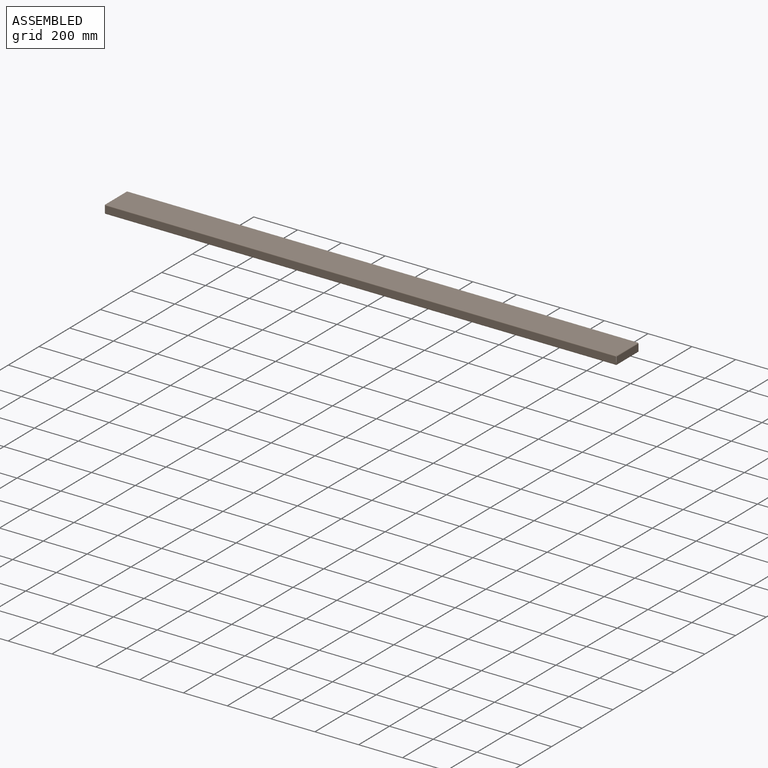
[diagram: assembled view]
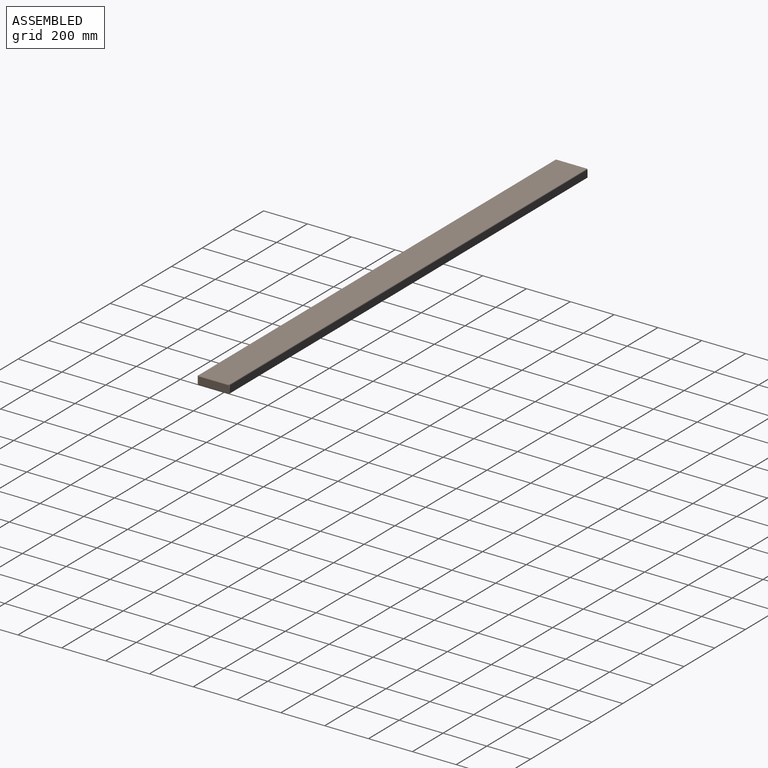
[diagram: assembled view, second angle]
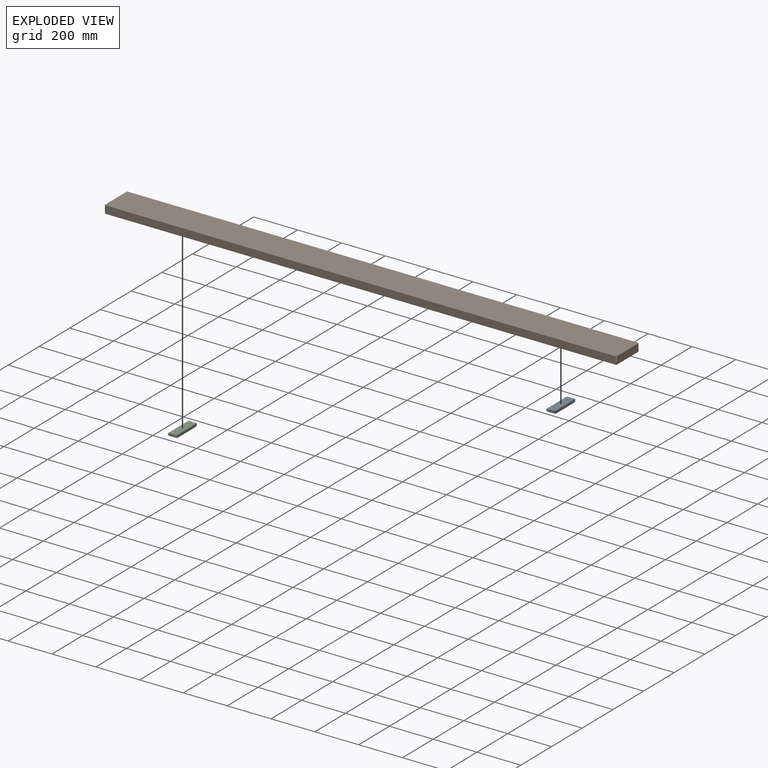
[diagram: exploded view]
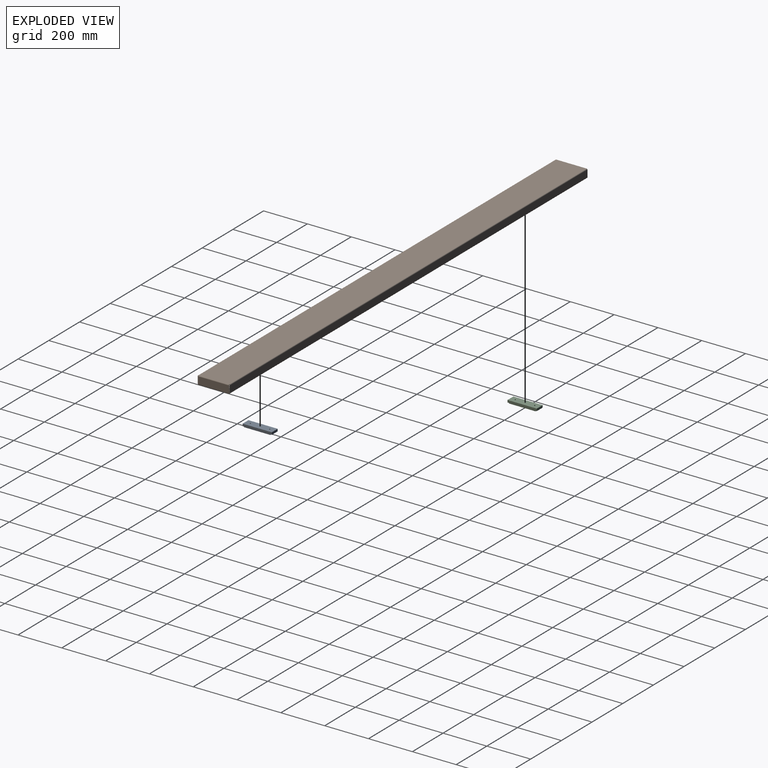
[diagram: exploded view, second angle]
ASSEMBLY  parts=3 mates=3
PART A: 12 faces, bbox 133.4x38.1x12.7 mm
  f0: plane 38.1x10.41mm, normal (1,0,0), area 396.8mm2, adj f2,f3,f4,f7
  f1: plane 38.1x10.41mm, normal (-1,0,0), area 396.8mm2, adj f2,f3,f4,f9
  f2: plane 133.35x12.7mm, normal (0,1,0), area 1664.5mm2, adj f0,f1,f4,f5,f6,f7,f8,f9
  f3: plane 133.35x12.7mm, normal (0,-1,0), area 1664.5mm2, adj f0,f1,f4,f5,f6,f7,f8,f9
  f4: plane 133.35x38.1mm, normal (0,0,-1), area 5039.7mm2, adj f0,f1,f2,f3,f10,f11
  f5: plane 120.65x38.1mm, normal (0,0,1), area 4555.8mm2, adj f2,f3,f6,f8,f10,f11
  f6: plane 38.1x2.29mm, normal (1,0,0), area 87.1mm2, adj f2,f3,f5,f7
  f7: plane 38.1x6.35mm, normal (0,0,1), area 241.9mm2, adj f0,f2,f3,f6
  f8: plane 38.1x2.29mm, normal (-1,0,0), area 87.1mm2, adj f2,f3,f5,f9
  f9: plane 38.1x6.35mm, normal (0,0,1), area 241.9mm2, adj f1,f2,f3,f8
  f10: cylinder r=2.55mm len=12.7mm, axis (0,0,1), area 203.7mm2, adj f4,f5
  f11: cylinder r=2.55mm len=12.7mm, axis (0,0,1), area 203.7mm2, adj f4,f5
PART B: 110 faces, bbox 2336.8x146.1x38.1 mm
  f0: plane 2330.2x139.45mm, normal (0,0,-1), area 324936.5mm2, adj f36,f71,f75,f79
  f1: plane 2330.2x139.45mm, normal (0,0,1), area 324936.5mm2, adj f35,f70,f74,f78
  f2: plane 4.83x2.29mm, normal (0,-1,0), area 11mm2, adj f3,f20,f21,f22
  f3: plane 3.81x2.29mm, normal (1,0,0), area 8.7mm2, adj f2,f4,f21,f22
  f4: plane 28.45x2.29mm, normal (0,-1,0), area 65mm2, adj f3,f5,f21,f22
  f5: plane 3.81x2.29mm, normal (-1,0,0), area 8.7mm2, adj f4,f6,f21,f22
  f6: plane 4.83x2.29mm, normal (0,-1,0), area 11mm2, adj f5,f7,f21,f22
  f7: plane 3.18x2.29mm, normal (-1,0,0), area 7.3mm2, adj f6,f8,f21,f22
  f8: plane 1689.1x2.29mm, normal (0,-1,0), area 3861.3mm2, adj f7,f9,f21,f22
  f9: plane 3.18x2.29mm, normal (1,0,0), area 7.3mm2, adj f8,f10,f21,f22
  f10: plane 4.83x2.29mm, normal (0,-1,0), area 11mm2, adj f9,f11,f21,f22
  f11: plane 3.81x2.29mm, normal (1,0,0), area 8.7mm2, adj f10,f12,f21,f22
  f12: plane 28.45x2.29mm, normal (0,-1,0), area 65mm2, adj f11,f13,f21,f22
  f13: plane 3.81x2.29mm, normal (-1,0,0), area 8.7mm2, adj f12,f14,f21,f22
  f14: plane 4.83x2.29mm, normal (0,-1,0), area 11mm2, adj f13,f15,f21,f22
  f15: plane 3.18x2.29mm, normal (-1,0,0), area 7.3mm2, adj f14,f16,f21,f22
  f16: plane 269.7x2.29mm, normal (0,-1,0), area 616.5mm2, adj f15,f17,f21,f22
  f17: plane 12.57x12.57mm, normal (0.71,-0.71,0), area 40.6mm2, adj f16,f21,f22,f24
  f18: plane 12.57x12.57mm, normal (-0.71,-0.71,0), area 40.6mm2, adj f19,f21,f22,f23
  f19: plane 269.7x2.29mm, normal (0,-1,0), area 616.5mm2, adj f18,f20,f21,f22
  f20: plane 3.18x2.29mm, normal (1,0,0), area 7.3mm2, adj f2,f19,f21,f22
  f21: plane 2329.84x12.57mm, normal (0,0,1), area 28676.2mm2, adj f2,f3,f4,f5,f6,f7,f8,f9
  f22: plane 2329.84x12.57mm, normal (0,0,-1), area 28676.2mm2, adj f2,f3,f4,f5,f6,f7,f8,f9
  f23: bspline ~3.3x3.3mm, area 8.1mm2, adj f18,f25,f26,f30
  f24: bspline ~3.3x3.3mm, area 8.2mm2, adj f17,f25,f26,f28
  f25: cylinder r=3.3mm len=2331.72mm, axis (-1,0,0), area 12090.6mm2, adj f22,f23,f24,f32
  f26: cylinder r=1.02mm len=2331.72mm, axis (-1,0,0), area 3720.2mm2, adj f21,f23,f24,f31
  f27: plane 2.29x0.76mm, normal (0,0,1), area 1.7mm2, adj f30,f31,f32,f33
  f28: plane 31.5x2.29mm, normal (1,0,0), area 72mm2, adj f24,f29,f31,f32
  f29: plane 2.29x0.76mm, normal (0,0,1), area 1.7mm2, adj f28,f31,f32,f34
  f30: plane 31.5x2.29mm, normal (-1,0,0), area 72mm2, adj f23,f27,f31,f32
  f31: plane 2331.72x31.5mm, normal (0,-1,0), area 73439.9mm2, adj f26,f27,f28,f29,f30,f36
  f32: plane 2331.72x31.5mm, normal (0,1,0), area 73439.9mm2, adj f25,f27,f28,f29,f30,f35
  f33: plane 3.3x3.3mm, normal (-1,0,0), area 7.8mm2, adj f27,f35,f36,f77
  f34: plane 3.3x3.3mm, normal (1,0,0), area 7.8mm2, adj f29,f35,f36,f73
  f35: cylinder r=3.3mm len=2330.2mm, axis (-1,0,0), area 12086.2mm2, adj f1,f32,f33,f34
  f36: cylinder r=1.02mm len=2330.2mm, axis (-1,0,0), area 3718.8mm2, adj f0,f31,f33,f34
  f37: plane 3.81x2.29mm, normal (-1,0,0), area 8.7mm2, adj f38,f55,f56,f57
  f38: plane 28.45x2.29mm, normal (0,1,0), area 65mm2, adj f37,f39,f56,f57
  f39: plane 3.81x2.29mm, normal (1,0,0), area 8.7mm2, adj f38,f40,f56,f57
  f40: plane 4.83x2.29mm, normal (0,1,0), area 11mm2, adj f39,f41,f56,f57
  f41: plane 3.18x2.29mm, normal (1,0,0), area 7.3mm2, adj f40,f42,f56,f57
  f42: plane 1689.1x2.29mm, normal (0,1,0), area 3861.3mm2, adj f41,f43,f56,f57
  f43: plane 3.18x2.29mm, normal (-1,0,0), area 7.3mm2, adj f42,f44,f56,f57
  f44: plane 4.83x2.29mm, normal (0,1,0), area 11mm2, adj f43,f45,f56,f57
  f45: plane 3.81x2.29mm, normal (-1,0,0), area 8.7mm2, adj f44,f46,f56,f57
  f46: plane 28.45x2.29mm, normal (0,1,0), area 65mm2, adj f45,f47,f56,f57
  f47: plane 3.81x2.29mm, normal (1,0,0), area 8.7mm2, adj f46,f48,f56,f57
  f48: plane 4.83x2.29mm, normal (0,1,0), area 11mm2, adj f47,f49,f56,f57
  f49: plane 3.18x2.29mm, normal (1,0,0), area 7.3mm2, adj f48,f50,f56,f57
  f50: plane 269.7x2.29mm, normal (0,1,0), area 616.5mm2, adj f49,f51,f56,f57
  f51: plane 12.57x12.57mm, normal (-0.71,0.71,0), area 40.6mm2, adj f50,f56,f57,f59
  f52: plane 12.57x12.57mm, normal (0.71,0.71,0), area 40.6mm2, adj f53,f56,f57,f58
  f53: plane 269.7x2.29mm, normal (0,1,0), area 616.5mm2, adj f52,f54,f56,f57
  f54: plane 3.18x2.29mm, normal (-1,0,0), area 7.3mm2, adj f53,f55,f56,f57
  f55: plane 4.83x2.29mm, normal (0,1,0), area 11mm2, adj f37,f54,f56,f57
  f56: plane 2329.84x12.57mm, normal (0,0,1), area 28676.2mm2, adj f37,f38,f39,f40,f41,f42,f43,f44
  f57: plane 2329.84x12.57mm, normal (0,0,-1), area 28676.2mm2, adj f37,f38,f39,f40,f41,f42,f43,f44
  f58: bspline ~3.3x3.3mm, area 8.1mm2, adj f52,f60,f61,f65
  f59: bspline ~3.3x3.3mm, area 8.2mm2, adj f51,f60,f61,f63
  f60: cylinder r=3.3mm len=2331.72mm, axis (1,0,0), area 12090.6mm2, adj f57,f58,f59,f67
  f61: cylinder r=1.02mm len=2331.72mm, axis (1,0,0), area 3720.2mm2, adj f56,f58,f59,f66
  f62: plane 2.29x0.76mm, normal (0,0,1), area 1.7mm2, adj f65,f66,f67,f69
  f63: plane 31.5x2.29mm, normal (-1,0,0), area 72mm2, adj f59,f64,f66,f67
  f64: plane 2.29x0.76mm, normal (0,0,1), area 1.7mm2, adj f63,f66,f67,f68
  f65: plane 31.5x2.29mm, normal (1,0,0), area 72mm2, adj f58,f62,f66,f67
  f66: plane 2331.72x31.5mm, normal (0,1,0), area 73439.9mm2, adj f61,f62,f63,f64,f65,f71
  f67: plane 2331.72x31.5mm, normal (0,-1,0), area 73439.9mm2, adj f60,f62,f63,f64,f65,f70
  f68: plane 3.3x3.3mm, normal (-1,0,0), area 7.8mm2, adj f64,f70,f71,f76
  f69: plane 3.3x3.3mm, normal (1,0,0), area 7.8mm2, adj f62,f70,f71,f72
  f70: cylinder r=3.3mm len=2330.2mm, axis (-1,0,0), area 12086.2mm2, adj f1,f67,f68,f69
  f71: cylinder r=1.02mm len=2330.2mm, axis (-1,0,0), area 3718.8mm2, adj f0,f66,f68,f69
  f72: plane 3.3x3.3mm, normal (0,-1,0), area 7.8mm2, adj f69,f74,f75,f97
  f73: plane 3.3x3.3mm, normal (0,1,0), area 7.8mm2, adj f34,f74,f75,f95
  f74: cylinder r=3.3mm len=139.45mm, axis (0,-1,0), area 723.3mm2, adj f1,f72,f73,f100
  f75: cylinder r=1.02mm len=139.45mm, axis (0,-1,0), area 222.5mm2, adj f0,f72,f73,f99
  f76: plane 3.3x3.3mm, normal (0,-1,0), area 7.8mm2, adj f68,f78,f79,f80
  f77: plane 3.3x3.3mm, normal (0,1,0), area 7.8mm2, adj f33,f78,f79,f82
  f78: cylinder r=3.3mm len=139.45mm, axis (0,-1,0), area 723.3mm2, adj f1,f76,f77,f85
  f79: cylinder r=1.02mm len=139.45mm, axis (0,-1,0), area 222.5mm2, adj f0,f76,f77,f84
  f80: plane 2.29x0.76mm, normal (0,0,1), area 1.7mm2, adj f76,f83,f84,f85
  f81: plane 31.5x2.29mm, normal (0,1,0), area 72mm2, adj f82,f84,f85,f92
  f82: plane 2.29x0.76mm, normal (0,0,1), area 1.7mm2, adj f77,f81,f84,f85
  f83: plane 31.5x2.29mm, normal (0,-1,0), area 72mm2, adj f80,f84,f85,f91
  f84: plane 140.97x31.5mm, normal (1,0,0), area 4440mm2, adj f79,f80,f81,f82,f83,f94
  f85: plane 140.97x31.5mm, normal (-1,0,0), area 4440mm2, adj f78,f80,f81,f82,f83,f93
  f86: plane 113.94x2.29mm, normal (1,0,0), area 260.5mm2, adj f87,f88,f89,f90
  f87: plane 12.57x12.57mm, normal (0.71,0.71,0), area 40.6mm2, adj f86,f89,f90,f92
  f88: plane 12.57x12.57mm, normal (0.71,-0.71,0), area 40.6mm2, adj f86,f89,f90,f91
  f89: plane 139.09x12.57mm, normal (0,0,1), area 1590.7mm2, adj f86,f87,f88,f94
  f90: plane 139.09x12.57mm, normal (0,0,-1), area 1590.7mm2, adj f86,f87,f88,f93
  f91: bspline ~3.3x3.3mm, area 8.1mm2, adj f83,f88,f93,f94
  f92: bspline ~3.3x3.3mm, area 8.2mm2, adj f81,f87,f93,f94
  f93: cylinder r=3.3mm len=140.97mm, axis (0,-1,0), area 727.7mm2, adj f85,f90,f91,f92
  f94: cylinder r=1.02mm len=140.97mm, axis (0,-1,0), area 223.9mm2, adj f84,f89,f91,f92
  f95: plane 2.29x0.76mm, normal (0,0,1), area 1.7mm2, adj f73,f98,f99,f100
  f96: plane 31.5x2.29mm, normal (0,-1,0), area 72mm2, adj f97,f99,f100,f107
  f97: plane 2.29x0.76mm, normal (0,0,1), area 1.7mm2, adj f72,f96,f99,f100
  f98: plane 31.5x2.29mm, normal (0,1,0), area 72mm2, adj f95,f99,f100,f106
  f99: plane 140.97x31.5mm, normal (-1,0,0), area 4440mm2, adj f75,f95,f96,f97,f98,f109
  f100: plane 140.97x31.5mm, normal (1,0,0), area 4440mm2, adj f74,f95,f96,f97,f98,f108
  f101: plane 113.94x2.29mm, normal (-1,0,0), area 260.5mm2, adj f102,f103,f104,f105
  f102: plane 12.57x12.57mm, normal (-0.71,-0.71,0), area 40.6mm2, adj f101,f104,f105,f107
  f103: plane 12.57x12.57mm, normal (-0.71,0.71,0), area 40.6mm2, adj f101,f104,f105,f106
  f104: plane 139.09x12.57mm, normal (0,0,1), area 1590.7mm2, adj f101,f102,f103,f109
  f105: plane 139.09x12.57mm, normal (0,0,-1), area 1590.7mm2, adj f101,f102,f103,f108
  f106: bspline ~3.3x3.3mm, area 8.1mm2, adj f98,f103,f108,f109
  f107: bspline ~3.3x3.3mm, area 8.2mm2, adj f96,f102,f108,f109
  f108: cylinder r=3.3mm len=140.97mm, axis (0,1,0), area 727.7mm2, adj f100,f105,f106,f107
  f109: cylinder r=1.02mm len=140.97mm, axis (0,1,0), area 223.9mm2, adj f99,f104,f106,f107
PART C: same geometry as A
PLACE A rot(axis=(0.71,0.71,0),180deg) t=(1239.53,32.9,357.13)mm
PLACE B t=(375.93,32.9,392.94)mm
PLACE C rot(axis=(0.71,0.71,0),180deg) t=(-487.67,32.9,357.13)mm
MATE planar C.f5 <-> B.f57  axis (0,0,-1) through (-487.67,32.9,357.13)mm
MATE planar C.f8 <-> B.f40  axis (0,-1,0) through (-487.67,-27.43,358.27)mm
MATE parallel C.f5 <-> B.f57  axis (0,0,-1) through (-506.72,93.22,357.13)mm
